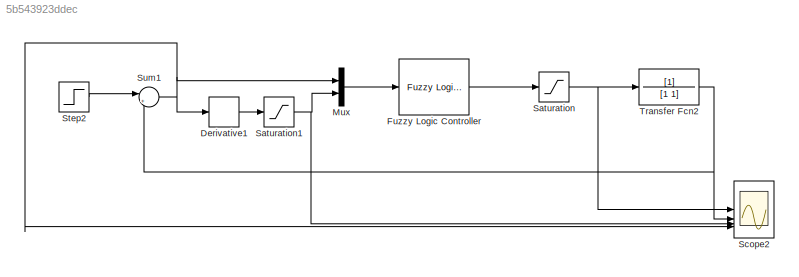
MODEL slx_5b543923ddec
KIND model
CONFIG AbsTol = auto
CONFIG EnableMultiTasking = off
CONFIG FixedStep = auto
CONFIG MaxStep = auto
CONFIG MinStep = auto
CONFIG RelTol = 1e-3
CONFIG SampleTimeConstraint = Unconstrained
CONFIG SolverName = VariableStepAuto
CONFIG StartTime = 0.0
CONFIG StopTime = 2
BLOCK [Derivative] Derivative1
  CoefficientInTFapproximation = 0
BLOCK [Reference] Fuzzy Logic Controller  REF=fuzblock/Fuzzy Logic   (lib defined in mdl_858b3b3e7478)
Controller
  SourceBlock = fuzblock/Fuzzy Logic \nController
  SourceType = Fuzzy Inference System
BLOCK [Mux] Mux
  DisplayOption = bar
  Inputs = 2
BLOCK [Saturate] Saturation
  LowerLimit = -10
  UpperLimit = 10
BLOCK [Saturate] Saturation1
  LowerLimit = -10
  UpperLimit = 10
BLOCK [Scope] Scope2
  Floating = off
  NumInputPorts = 4
  ScopeSpecificationString = Simulink.scopes.TimeScopeBlockCfg('CurrentConfiguration', extmgr.ConfigurationSet(extmgr.Configuration('Core','General UI',true),extmgr.Configuration('Core','Source UI',true),extmgr.Configuration('Sources','WiredSimulink',true),extmgr.Configuration('Visuals','Time Domain',true,'SerializedDisplays',{struct('MinYLimReal','-9.28029','MaxYLimReal','9.28094','YLabelReal','','MinYLimMag','0.00000','MaxY...<+1769ch>
BLOCK [Step] Step2
  SampleTime = 0
  Time = 0
BLOCK [Sum] Sum1
  Inputs = |+-
BLOCK [TransferFcn] Transfer Fcn2
  Denominator = [1 1]
LINE Derivative1:1 -> Saturation1:1
LINE Fuzzy Logic Controller:1 -> Saturation:1
LINE Mux:1 -> Fuzzy Logic Controller:1
NET Saturation1:1 -> Mux:2, Scope2:3
NET Saturation:1 -> Scope2:1, Transfer Fcn2:1
LINE Step2:1 -> Sum1:1
NET Sum1:1 -> Derivative1:1, Mux:1, Scope2:4
NET Transfer Fcn2:1 -> Scope2:2, Sum1:2
note: NET lines group one-source signal fan-out (src -> all destinations, sorted); 1:1 wires keep LINE
